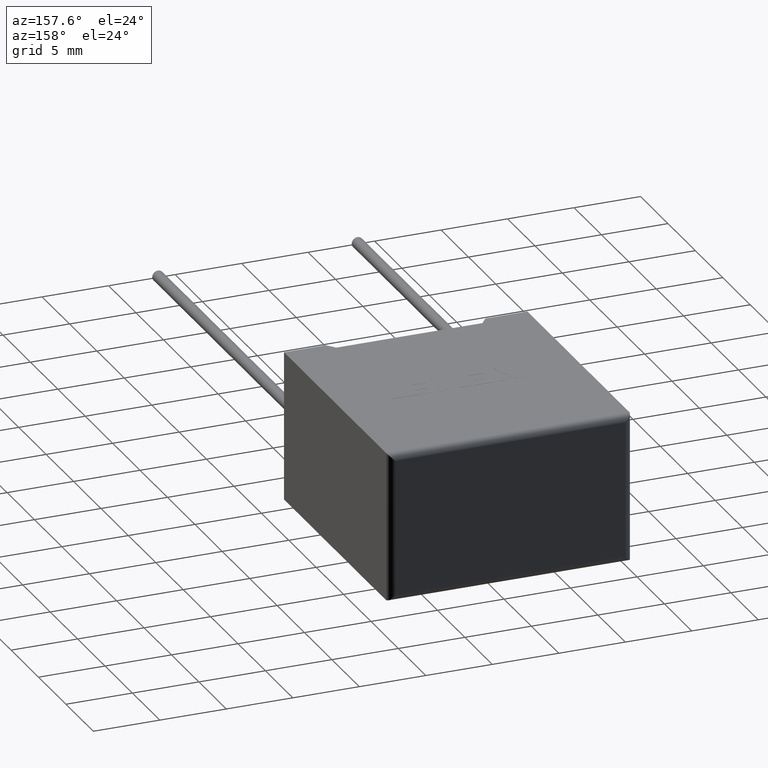
[diagram: clean part render]
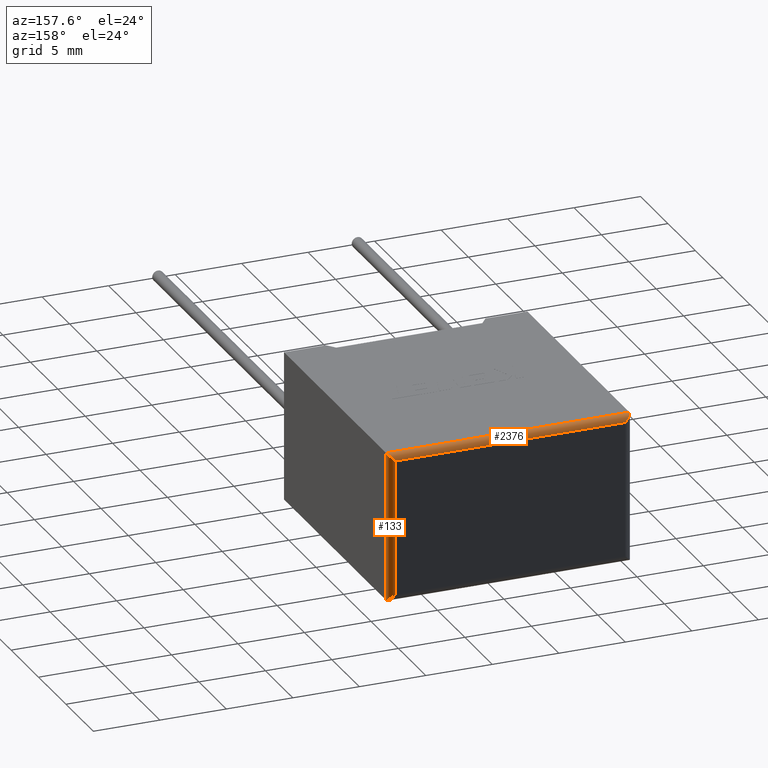
[diagram: same view with one multi-face feature highlighted, each face labeled with its STEP entity id]
A machine part, auxiliary view. The highlighted faces form ONE feature: a constant-radius fillet chain: 2 tangent blend faces with common blend radius 0.5 mm. The faces share edges in the B-rep.
Their STEP definitions:
[1] entity #2376 (Cylinder):
#120 = CARTESIAN_POINT ( 'NONE',  ( 18.09289321881345103, 19.10000000000000142, 10.99289321881345138 ) ) ;
#327 = CARTESIAN_POINT ( 'NONE',  ( 0.5000000000000000000, 19.10000000000000142, 10.69999999999999929 ) ) ;
#331 = CARTESIAN_POINT ( 'NONE',  ( 18.30000000000000071, 18.60000000000000142, 11.19999999999999929 ) ) ;
#355 = CYLINDRICAL_SURFACE ( 'NONE', #466, 0.5000000000000004441 ) ;
#466 = AXIS2_PLACEMENT_3D ( 'NONE', #1828, #1571, #2060 ) ;
#519 = EDGE_CURVE ( 'NONE', #2908, #950, #2898, .T. ) ;
#546 = EDGE_CURVE ( 'NONE', #2101, #1293, #2018, .T. ) ;
#548 = CARTESIAN_POINT ( 'NONE',  ( 18.30000000000000071, 18.89289321881345529, 11.19999999999999929 ) ) ;
#580 = EDGE_CURVE ( 'NONE', #1293, #2908, #1431, .T. ) ;
#788 = DIRECTION ( 'NONE',  ( 1.000000000000000000, -0.000000000000000000, -0.000000000000000000 ) ) ;
#950 = VERTEX_POINT ( 'NONE', #2840 ) ;
#955 = ORIENTED_EDGE ( 'NONE', *, *, #519, .F. ) ;
#973 = CARTESIAN_POINT ( 'NONE',  ( 18.30000000000000071, 18.60000000000000142, 11.19999999999999929 ) ) ;
#1080 = CARTESIAN_POINT ( 'NONE',  ( 0.000000000000000000, 18.60000000000000142, 11.19999999999999929 ) ) ;
#1293 = VERTEX_POINT ( 'NONE', #2864 ) ;
#1329 = CARTESIAN_POINT ( 'NONE',  ( 1.084202172485504434E-16, 18.89289321881345529, 11.19999999999999929 ) ) ;
#1431 =( BOUNDED_CURVE ( )  B_SPLINE_CURVE ( 3, ( #1080, #1329, #2225, #2928 ),
 .UNSPECIFIED., .F., .T. ) 
 B_SPLINE_CURVE_WITH_KNOTS ( ( 4, 4 ),
 ( 0.000000000000000000, 1.570796326794896558 ),
 .UNSPECIFIED. ) 
 CURVE ( )  GEOMETRIC_REPRESENTATION_ITEM ( )  RATIONAL_B_SPLINE_CURVE ( ( 1.000000000000000000, 0.8047378541243649375, 0.8047378541243649375, 1.000000000000000000 ) ) 
 REPRESENTATION_ITEM ( '' )  );
#1485 = ORIENTED_EDGE ( 'NONE', *, *, #580, .F. ) ;
#1496 = CARTESIAN_POINT ( 'NONE',  ( 17.80000000000000071, 19.10000000000000142, 10.69999999999999929 ) ) ;
#1571 = DIRECTION ( 'NONE',  ( -1.000000000000000000, 0.000000000000000000, 0.000000000000000000 ) ) ;
#1719 = VECTOR ( 'NONE', #788, 1000.000000000000000 ) ;
#1740 =( BOUNDED_CURVE ( )  B_SPLINE_CURVE ( 3, ( #973, #548, #120, #1496 ),
 .UNSPECIFIED., .F., .T. ) 
 B_SPLINE_CURVE_WITH_KNOTS ( ( 4, 4 ),
 ( 3.141592653589793116, 4.712388980384689674 ),
 .UNSPECIFIED. ) 
 CURVE ( )  GEOMETRIC_REPRESENTATION_ITEM ( )  RATIONAL_B_SPLINE_CURVE ( ( 1.000000000000000000, 0.8047378541243649375, 0.8047378541243649375, 1.000000000000000000 ) ) 
 REPRESENTATION_ITEM ( '' )  );
#1765 = FACE_OUTER_BOUND ( 'NONE', #2606, .T. ) ;
#1828 = CARTESIAN_POINT ( 'NONE',  ( 0.000000000000000000, 18.60000000000000142, 10.69999999999999929 ) ) ;
#1853 = ORIENTED_EDGE ( 'NONE', *, *, #2319, .T. ) ;
#1914 = VECTOR ( 'NONE', #2942, 1000.000000000000000 ) ;
#2018 = LINE ( 'NONE', #2497, #1914 ) ;
#2053 = ORIENTED_EDGE ( 'NONE', *, *, #546, .F. ) ;
#2060 = DIRECTION ( 'NONE',  ( 0.000000000000000000, 0.000000000000000000, 1.000000000000000000 ) ) ;
#2101 = VERTEX_POINT ( 'NONE', #331 ) ;
#2225 = CARTESIAN_POINT ( 'NONE',  ( 0.2071067811865475727, 19.10000000000000142, 10.99289321881345138 ) ) ;
#2240 = CARTESIAN_POINT ( 'NONE',  ( 0.000000000000000000, 19.10000000000000142, 10.69999999999999929 ) ) ;
#2319 = EDGE_CURVE ( 'NONE', #2101, #950, #1740, .T. ) ;
#2376 = ADVANCED_FACE ( 'NONE', ( #1765 ), #355, .T. ) ;
#2497 = CARTESIAN_POINT ( 'NONE',  ( 0.000000000000000000, 18.60000000000000142, 11.19999999999999929 ) ) ;
#2606 = EDGE_LOOP ( 'NONE', ( #1853, #955, #1485, #2053 ) ) ;
#2840 = CARTESIAN_POINT ( 'NONE',  ( 17.80000000000000071, 19.10000000000000142, 10.69999999999999929 ) ) ;
#2864 = CARTESIAN_POINT ( 'NONE',  ( 0.000000000000000000, 18.60000000000000142, 11.19999999999999929 ) ) ;
#2898 = LINE ( 'NONE', #2240, #1719 ) ;
#2908 = VERTEX_POINT ( 'NONE', #327 ) ;
#2928 = CARTESIAN_POINT ( 'NONE',  ( 0.5000000000000000000, 19.10000000000000142, 10.69999999999999929 ) ) ;
#2942 = DIRECTION ( 'NONE',  ( -1.000000000000000000, 0.000000000000000000, 0.000000000000000000 ) ) ;
[2] entity #133 (Cylinder):
#54 = CARTESIAN_POINT ( 'NONE',  ( 17.80000000000000071, 18.60000000000000142, 11.19999999999999929 ) ) ;
#120 = CARTESIAN_POINT ( 'NONE',  ( 18.09289321881345103, 19.10000000000000142, 10.99289321881345138 ) ) ;
#133 = ADVANCED_FACE ( 'NONE', ( #1944 ), #792, .T. ) ;
#263 = EDGE_CURVE ( 'NONE', #2433, #1611, #1110, .T. ) ;
#295 = CARTESIAN_POINT ( 'NONE',  ( 17.80000000000000071, 19.10000000000000142, 11.19999999999999929 ) ) ;
#299 = EDGE_CURVE ( 'NONE', #1611, #2101, #873, .T. ) ;
#330 = AXIS2_PLACEMENT_3D ( 'NONE', #54, #777, #3041 ) ;
#331 = CARTESIAN_POINT ( 'NONE',  ( 18.30000000000000071, 18.60000000000000142, 11.19999999999999929 ) ) ;
#342 = EDGE_LOOP ( 'NONE', ( #1031, #484, #815, #2048 ) ) ;
#484 = ORIENTED_EDGE ( 'NONE', *, *, #2825, .F. ) ;
#548 = CARTESIAN_POINT ( 'NONE',  ( 18.30000000000000071, 18.89289321881345529, 11.19999999999999929 ) ) ;
#560 = CARTESIAN_POINT ( 'NONE',  ( 18.30000000000000071, 18.60000000000000142, 11.19999999999999929 ) ) ;
#777 = DIRECTION ( 'NONE',  ( 0.000000000000000000, 0.000000000000000000, -1.000000000000000000 ) ) ;
#792 = CYLINDRICAL_SURFACE ( 'NONE', #330, 0.5000000000000004441 ) ;
#815 = ORIENTED_EDGE ( 'NONE', *, *, #2319, .F. ) ;
#855 = CARTESIAN_POINT ( 'NONE',  ( 17.80000000000000071, 19.10000000000000142, 0.5000000000000004441 ) ) ;
#873 = LINE ( 'NONE', #560, #1766 ) ;
#950 = VERTEX_POINT ( 'NONE', #2840 ) ;
#973 = CARTESIAN_POINT ( 'NONE',  ( 18.30000000000000071, 18.60000000000000142, 11.19999999999999929 ) ) ;
#1031 = ORIENTED_EDGE ( 'NONE', *, *, #263, .F. ) ;
#1105 = CARTESIAN_POINT ( 'NONE',  ( 17.80000000000000071, 19.10000000000000142, 0.5000000000000004441 ) ) ;
#1110 =( BOUNDED_CURVE ( )  B_SPLINE_CURVE ( 3, ( #855, #2244, #2687, #2488 ),
 .UNSPECIFIED., .F., .T. ) 
 B_SPLINE_CURVE_WITH_KNOTS ( ( 4, 4 ),
 ( 4.712388980384689674, 6.283185307179586232 ),
 .UNSPECIFIED. ) 
 CURVE ( )  GEOMETRIC_REPRESENTATION_ITEM ( )  RATIONAL_B_SPLINE_CURVE ( ( 1.000000000000000000, 0.8047378541243649375, 0.8047378541243649375, 1.000000000000000000 ) ) 
 REPRESENTATION_ITEM ( '' )  );
#1496 = CARTESIAN_POINT ( 'NONE',  ( 17.80000000000000071, 19.10000000000000142, 10.69999999999999929 ) ) ;
#1606 = VECTOR ( 'NONE', #2605, 1000.000000000000000 ) ;
#1611 = VERTEX_POINT ( 'NONE', #2613 ) ;
#1740 =( BOUNDED_CURVE ( )  B_SPLINE_CURVE ( 3, ( #973, #548, #120, #1496 ),
 .UNSPECIFIED., .F., .T. ) 
 B_SPLINE_CURVE_WITH_KNOTS ( ( 4, 4 ),
 ( 3.141592653589793116, 4.712388980384689674 ),
 .UNSPECIFIED. ) 
 CURVE ( )  GEOMETRIC_REPRESENTATION_ITEM ( )  RATIONAL_B_SPLINE_CURVE ( ( 1.000000000000000000, 0.8047378541243649375, 0.8047378541243649375, 1.000000000000000000 ) ) 
 REPRESENTATION_ITEM ( '' )  );
#1766 = VECTOR ( 'NONE', #2444, 1000.000000000000000 ) ;
#1944 = FACE_OUTER_BOUND ( 'NONE', #342, .T. ) ;
#2048 = ORIENTED_EDGE ( 'NONE', *, *, #299, .F. ) ;
#2101 = VERTEX_POINT ( 'NONE', #331 ) ;
#2244 = CARTESIAN_POINT ( 'NONE',  ( 18.09289321881345103, 19.10000000000000142, 0.2071067811865480723 ) ) ;
#2319 = EDGE_CURVE ( 'NONE', #2101, #950, #1740, .T. ) ;
#2433 = VERTEX_POINT ( 'NONE', #1105 ) ;
#2444 = DIRECTION ( 'NONE',  ( -0.000000000000000000, -0.000000000000000000, 1.000000000000000000 ) ) ;
#2488 = CARTESIAN_POINT ( 'NONE',  ( 18.30000000000000071, 18.60000000000000142, 0.000000000000000000 ) ) ;
#2605 = DIRECTION ( 'NONE',  ( 0.000000000000000000, 0.000000000000000000, -1.000000000000000000 ) ) ;
#2613 = CARTESIAN_POINT ( 'NONE',  ( 18.30000000000000071, 18.60000000000000142, 0.000000000000000000 ) ) ;
#2617 = LINE ( 'NONE', #295, #1606 ) ;
#2687 = CARTESIAN_POINT ( 'NONE',  ( 18.30000000000000071, 18.89289321881345529, 5.421010862427522170E-16 ) ) ;
#2825 = EDGE_CURVE ( 'NONE', #950, #2433, #2617, .T. ) ;
#2840 = CARTESIAN_POINT ( 'NONE',  ( 17.80000000000000071, 19.10000000000000142, 10.69999999999999929 ) ) ;
#3041 = DIRECTION ( 'NONE',  ( -1.000000000000000000, 0.000000000000000000, 0.000000000000000000 ) ) ;